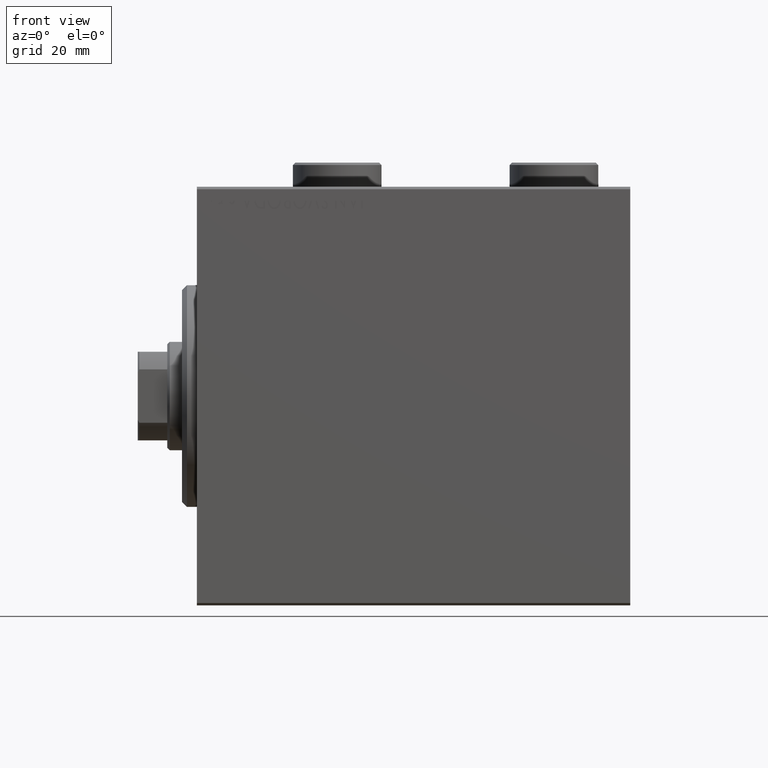
[diagram: clean part render]
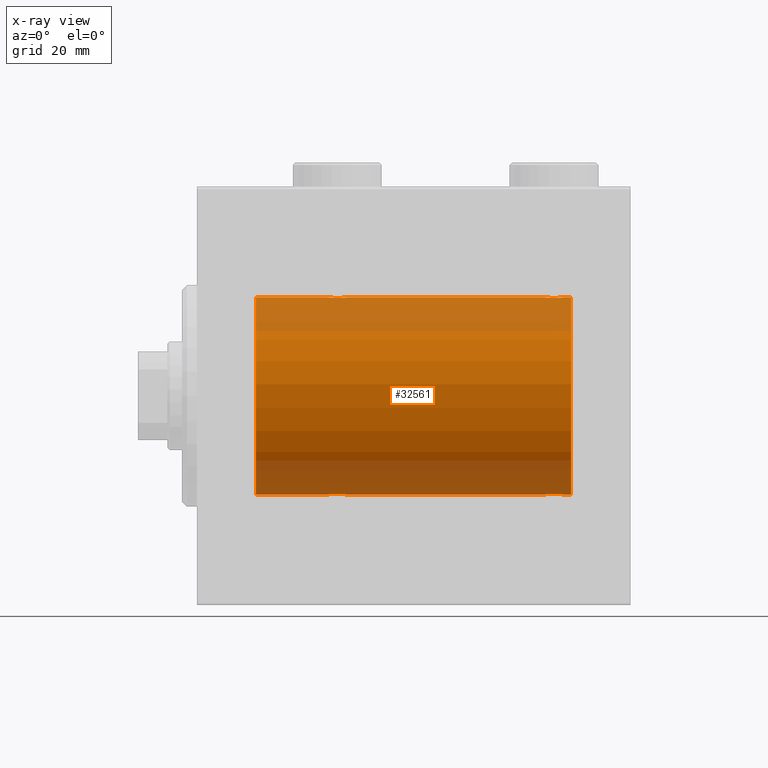
[diagram: x-ray — body ghosted, one internal face saturated and labeled with its STEP entity id]
A machine part, front view, then the same camera in x-ray: the body is ghosted and one INTERNAL B-rep face — a face not visible from any outside direction — is saturated and labeled: STEP entity #32561.
In plain terms, the highlighted cylindrical surface (partial cylindrical patch) has radius 20 mm, axis along (-1, -0, -0).
Its self-contained STEP definition (entity closure, byte-faithful):
#18 = CYLINDRICAL_SURFACE ( 'NONE', #40103, 20.00000000000000000 ) ;
#47 = EDGE_CURVE ( 'NONE', #7856, #31457, #36540, .T. ) ;
#155 = CARTESIAN_POINT ( 'NONE',  ( 74.24825913460018967, -1.005710574260840984, -19.97614991974274901 ) ) ;
#382 = CARTESIAN_POINT ( 'NONE',  ( 73.01923512135279282, -1.935816449315126642, -19.90611141657402072 ) ) ;
#414 = CARTESIAN_POINT ( 'NONE',  ( 28.76358144091416236, -1.986835489085814199, -19.90108393514801222 ) ) ;
#602 = CARTESIAN_POINT ( 'NONE',  ( 73.50306556339603503, -1.735203193119893461, -19.92471783160911514 ) ) ;
#634 = CARTESIAN_POINT ( 'NONE',  ( 70.90058475115969827, -1.228758402364240609, 19.96307487248084911 ) ) ;
#833 = DIRECTION ( 'NONE',  ( -1.000000000000000000, -0.000000000000000000, -0.000000000000000000 ) ) ;
#841 = CARTESIAN_POINT ( 'NONE',  ( 71.17903093152709459, -1.507328959728491791, -19.94333197382385592 ) ) ;
#874 = CARTESIAN_POINT ( 'NONE',  ( 70.50000000000000000, -1.553188236289650144E-23, 20.00000000000000000 ) ) ;
#1108 = CARTESIAN_POINT ( 'NONE',  ( 73.14348528733046351, -1.898187925611334315, 19.90978194174746818 ) ) ;
#1552 = CARTESIAN_POINT ( 'NONE',  ( 70.55244937117491588, -0.5243189001515019543, 19.99457699142849876 ) ) ;
#2266 = CARTESIAN_POINT ( 'NONE',  ( 30.49999999999999289, -0.2644051013330969702, 20.00000000000000711 ) ) ;
#2488 = CARTESIAN_POINT ( 'NONE',  ( 27.49693443660397918, -1.735203193119897902, 19.92471783160911158 ) ) ;
#3011 = VECTOR ( 'NONE', #833, 1000.000000000000000 ) ;
#3139 = VECTOR ( 'NONE', #11126, 1000.000000000000000 ) ;
#3190 = CARTESIAN_POINT ( 'NONE',  ( 27.98351467081095123, -1.936551476643005198, -19.90603968831098314 ) ) ;
#3334 = LINE ( 'NONE', #6107, #34472 ) ;
#3386 = CARTESIAN_POINT ( 'NONE',  ( 70.55320515808200810, -0.5270924491156711023, -19.99450181871975474 ) ) ;
#3413 = CARTESIAN_POINT ( 'NONE',  ( 30.09941524884030173, -1.228758402364235502, -19.96307487248084911 ) ) ;
#3608 = CARTESIAN_POINT ( 'NONE',  ( 74.50000000000001421, 2.449293582762867932E-15, -20.00000000000000000 ) ) ;
#3623 = EDGE_CURVE ( 'NONE', #6312, #17763, #35611, .T. ) ;
#4320 = CARTESIAN_POINT ( 'NONE',  ( 73.38579076670728796, -1.797933656607910713, 19.91908554465557657 ) ) ;
#4708 = ORIENTED_EDGE ( 'NONE', *, *, #21113, .T. ) ;
#4775 = CARTESIAN_POINT ( 'NONE',  ( 72.36634803857555198, -1.999898234284061216, 19.89975896996866922 ) ) ;
#4781 = CARTESIAN_POINT ( 'NONE',  ( 70.50000000000000000, -1.553188236289650144E-23, 20.00000000000000000 ) ) ;
#5167 = EDGE_LOOP ( 'NONE', ( #13993, #20330, #14172, #23089, #11735, #26448, #4708, #23961, #15843, #12724, #17313, #19059 ) ) ;
#5257 = CARTESIAN_POINT ( 'NONE',  ( 30.24686976303072328, -1.008108445278687926, 19.97602680192586888 ) ) ;
#5488 = CARTESIAN_POINT ( 'NONE',  ( 28.23641855908585541, -1.986835489085814643, 19.90108393514801222 ) ) ;
#5938 = CARTESIAN_POINT ( 'NONE',  ( 26.50000000000000711, -0.2610801504281929919, 20.00000000000000000 ) ) ;
#6107 = CARTESIAN_POINT ( 'NONE',  ( 76.00000000000000000, 0.000000000000000000, 20.00000000000000000 ) ) ;
#6312 = VERTEX_POINT ( 'NONE', #37732 ) ;
#6409 = CARTESIAN_POINT ( 'NONE',  ( 29.01923512135276795, -1.935816449315124643, -19.90611141657401717 ) ) ;
#6709 = CARTESIAN_POINT ( 'NONE',  ( 11.99999999999999645, 0.000000000000000000, 20.00000000000000000 ) ) ;
#7091 = CARTESIAN_POINT ( 'NONE',  ( 26.55320515808203297, -0.5270924491156698810, -19.99450181871976184 ) ) ;
#7318 = CARTESIAN_POINT ( 'NONE',  ( 28.63365196142448355, -1.999898234284062992, -19.89975896996866211 ) ) ;
#7704 = CIRCLE ( 'NONE', #31242, 20.00000000000000000 ) ;
#7749 = CARTESIAN_POINT ( 'NONE',  ( 71.98351467081099031, -1.936551476643008529, -19.90603968831099024 ) ) ;
#7856 = VERTEX_POINT ( 'NONE', #44254 ) ;
#8001 = CARTESIAN_POINT ( 'NONE',  ( 73.82096906847290541, -1.507328959728488238, 19.94333197382385947 ) ) ;
#8095 = B_SPLINE_CURVE_WITH_KNOTS ( 'NONE', 3,
 ( #33622, #5938, #33396, #36849, #34066, #37081, #12638, #2488, #29707, #30605, #43764, #5488, #44652, #13080, #19570, #8491, #27153, #22571, #19109, #16106, #12187, #26256, #5257, #19796, #2266, #33850 ),
 .UNSPECIFIED., .F., .F.,
 ( 4, 2, 2, 2, 2, 2, 2, 2, 2, 2, 2, 2, 4 ),
 ( 0.006256819553329811059, 0.007038738568778783733, 0.007820657584227756406, 0.008211617091952238406, 0.008602576599676722141, 0.008993536107401204141, 0.009384495615125686141, 0.009775455122850168141, 0.01016641463057465014, 0.01055737413829913214, 0.01094833364602361414, 0.01173025266147257814, 0.01251217167692154214 ),
 .UNSPECIFIED. ) ;
#8227 = CARTESIAN_POINT ( 'NONE',  ( 74.50000000000001421, 9.984436361108698300E-16, 20.00000000000000000 ) ) ;
#8459 = CARTESIAN_POINT ( 'NONE',  ( 70.75174086539982454, -1.005710574260841872, 19.97614991974274190 ) ) ;
#8491 = CARTESIAN_POINT ( 'NONE',  ( 29.01648532918905943, -1.936551476643006753, 19.90603968831098669 ) ) ;
#8818 = CARTESIAN_POINT ( 'NONE',  ( 74.50000000000001421, 2.449293582762867932E-15, -20.00000000000000000 ) ) ;
#9363 = EDGE_CURVE ( 'NONE', #12525, #7856, #12862, .T. ) ;
#9412 = DIRECTION ( 'NONE',  ( -1.000000000000000000, -0.000000000000000000, -0.000000000000000000 ) ) ;
#9879 = CARTESIAN_POINT ( 'NONE',  ( 26.75313023696928738, -1.008108445278687704, -19.97602680192586533 ) ) ;
#10332 = CARTESIAN_POINT ( 'NONE',  ( 30.24825913460018612, -1.005710574260838985, -19.97614991974274190 ) ) ;
#10562 = CARTESIAN_POINT ( 'NONE',  ( 29.14630673924643744, -1.897222639860594029, -19.90987429971496780 ) ) ;
#10786 = CARTESIAN_POINT ( 'NONE',  ( 27.85651471266959334, -1.898187925611338533, -19.90978194174746818 ) ) ;
#10962 = CARTESIAN_POINT ( 'NONE',  ( 30.50000000000000000, -4.014971335008767791E-15, 20.00000000000000000 ) ) ;
#11126 = DIRECTION ( 'NONE',  ( -1.000000000000000000, -0.000000000000000000, -0.000000000000000000 ) ) ;
#11245 = CARTESIAN_POINT ( 'NONE',  ( 72.23641855908587672, -1.986835489085812867, 19.90108393514801577 ) ) ;
#11504 = VERTEX_POINT ( 'NONE', #23957 ) ;
#11735 = ORIENTED_EDGE ( 'NONE', *, *, #44573, .T. ) ;
#12046 = CARTESIAN_POINT ( 'NONE',  ( 11.99999999999999645, 0.000000000000000000, 0.000000000000000000 ) ) ;
#12187 = CARTESIAN_POINT ( 'NONE',  ( 29.82096906847289119, -1.507328959728493567, 19.94333197382385592 ) ) ;
#12428 = CARTESIAN_POINT ( 'NONE',  ( 76.00000000000000000, 2.449293598294706513E-15, -20.00000000000000000 ) ) ;
#12525 = VERTEX_POINT ( 'NONE', #8818 ) ;
#12638 = CARTESIAN_POINT ( 'NONE',  ( 27.27971054205535850, -1.589957321664211998, 19.93683391378736047 ) ) ;
#12724 = ORIENTED_EDGE ( 'NONE', *, *, #39598, .F. ) ;
#12755 = VERTEX_POINT ( 'NONE', #4781 ) ;
#12862 = B_SPLINE_CURVE_WITH_KNOTS ( 'NONE', 3,
 ( #3608, #18137, #18370, #155, #45559, #24381, #32180, #602, #14663, #35419, #382, #25290, #20929, #14435, #42333, #7749, #14211, #24829, #21828, #32413, #841, #14897, #34973, #3386, #31503, #38656 ),
 .UNSPECIFIED., .F., .F.,
 ( 4, 2, 2, 2, 2, 2, 2, 2, 2, 2, 2, 2, 4 ),
 ( 0.006256819553329831876, 0.007038738568778780264, 0.007820657584227728651, 0.008211617091952217590, 0.008602576599676706529, 0.008993536107401195467, 0.009384495615125684406, 0.009775455122850173345, 0.01016641463057466055, 0.01055737413829914775, 0.01094833364602363843, 0.01173025266147261284, 0.01251217167692158898 ),
 .UNSPECIFIED. ) ;
#13080 = CARTESIAN_POINT ( 'NONE',  ( 28.63058871710834552, -2.000100592782553921, 19.89973863218035888 ) ) ;
#13567 = CARTESIAN_POINT ( 'NONE',  ( 26.90225308445269903, -1.230936344679278260, -19.96293863536309132 ) ) ;
#13722 = VERTEX_POINT ( 'NONE', #40138 ) ;
#13786 = CARTESIAN_POINT ( 'NONE',  ( 29.38829437207091999, -1.796691196322316664, -19.91919800395357143 ) ) ;
#13993 = ORIENTED_EDGE ( 'NONE', *, *, #32089, .F. ) ;
#14172 = ORIENTED_EDGE ( 'NONE', *, *, #9363, .T. ) ;
#14203 = CARTESIAN_POINT ( 'NONE',  ( 76.00000000000000000, 0.000000000000000000, 20.00000000000000000 ) ) ;
#14211 = CARTESIAN_POINT ( 'NONE',  ( 71.85651471266959334, -1.898187925611341198, -19.90978194174746818 ) ) ;
#14435 = CARTESIAN_POINT ( 'NONE',  ( 72.36941128289164737, -2.000100592782554809, -19.89973863218035888 ) ) ;
#14663 = CARTESIAN_POINT ( 'NONE',  ( 73.38829437207093065, -1.796691196322316886, -19.91919800395357143 ) ) ;
#14673 = EDGE_CURVE ( 'NONE', #22361, #29223, #8095, .T. ) ;
#14698 = CARTESIAN_POINT ( 'NONE',  ( 71.61170562792908356, -1.796691196322320216, 19.91919800395356788 ) ) ;
#14897 = CARTESIAN_POINT ( 'NONE',  ( 70.90225308445273811, -1.230936344679278038, -19.96293863536309487 ) ) ;
#15843 = ORIENTED_EDGE ( 'NONE', *, *, #14673, .T. ) ;
#15917 = CARTESIAN_POINT ( 'NONE',  ( 26.50000000000000355, -1.552596590610734385E-23, 20.00000000000000000 ) ) ;
#16106 = CARTESIAN_POINT ( 'NONE',  ( 29.71805419472152110, -1.591668229360196252, 19.93669678979812332 ) ) ;
#16657 = EDGE_CURVE ( 'NONE', #13722, #12525, #40779, .T. ) ;
#16948 = DIRECTION ( 'NONE',  ( -1.000000000000000000, -0.000000000000000000, -0.000000000000000000 ) ) ;
#17313 = ORIENTED_EDGE ( 'NONE', *, *, #44726, .T. ) ;
#17485 = CARTESIAN_POINT ( 'NONE',  ( 27.17903093152710525, -1.507328959728492457, -19.94333197382385592 ) ) ;
#17711 = CARTESIAN_POINT ( 'NONE',  ( 27.28194580527848601, -1.591668229360197140, -19.93669678979812332 ) ) ;
#17763 = VERTEX_POINT ( 'NONE', #33549 ) ;
#17987 = VECTOR ( 'NONE', #39061, 1000.000000000000000 ) ;
#18137 = CARTESIAN_POINT ( 'NONE',  ( 74.50000000000002842, -0.2610801504281906049, -19.99999999999999645 ) ) ;
#18169 = CARTESIAN_POINT ( 'NONE',  ( 70.50000000000004263, -0.2610801504281927699, 20.00000000000000355 ) ) ;
#18175 = CARTESIAN_POINT ( 'NONE',  ( 30.50000000000000000, 2.449293582768389958E-15, -20.00000000000000000 ) ) ;
#18370 = CARTESIAN_POINT ( 'NONE',  ( 74.44755062882509833, -0.5243189001515005110, -19.99457699142850231 ) ) ;
#18400 = CARTESIAN_POINT ( 'NONE',  ( 73.50067219139243946, -1.736582545981368852, 19.92459705242980661 ) ) ;
#18853 = CARTESIAN_POINT ( 'NONE',  ( 72.76077256031568652, -1.987205673487806967, 19.90104673894210663 ) ) ;
#19042 = EDGE_CURVE ( 'NONE', #11504, #26343, #32173, .T. ) ;
#19059 = ORIENTED_EDGE ( 'NONE', *, *, #19042, .F. ) ;
#19109 = CARTESIAN_POINT ( 'NONE',  ( 29.50067219139244656, -1.736582545981375292, 19.92459705242981371 ) ) ;
#19527 = B_SPLINE_CURVE_WITH_KNOTS ( 'NONE', 3,
 ( #31534, #45366, #20733, #10332, #3413, #31760, #31314, #24639, #13786, #10562, #6409, #414, #7318, #28084, #38459, #3190, #10786, #20494, #34545, #17711, #17485, #13567, #9879, #7091, #38684, #42139 ),
 .UNSPECIFIED., .F., .F.,
 ( 4, 2, 2, 2, 2, 2, 2, 2, 2, 2, 2, 2, 4 ),
 ( 0.006256819553329842284, 0.007038738568778818427, 0.007820657584227792836, 0.008211617091952278305, 0.008602576599676762040, 0.008993536107401245774, 0.009384495615125729509, 0.009775455122850213244, 0.01016641463057469871, 0.01055737413829918071, 0.01094833364602366618, 0.01173025266147263365, 0.01251217167692159939 ),
 .UNSPECIFIED. ) ;
#19570 = CARTESIAN_POINT ( 'NONE',  ( 28.76077256031567586, -1.987205673487810298, 19.90104673894210663 ) ) ;
#19796 = CARTESIAN_POINT ( 'NONE',  ( 30.44679484191797414, -0.5270924491156706582, 19.99450181871975829 ) ) ;
#20328 = DIRECTION ( 'NONE',  ( 0.000000000000000000, 0.000000000000000000, 1.000000000000000000 ) ) ;
#20330 = ORIENTED_EDGE ( 'NONE', *, *, #16657, .T. ) ;
#20494 = CARTESIAN_POINT ( 'NONE',  ( 27.61420923329272981, -1.797933656607917596, -19.91908554465558367 ) ) ;
#20559 = CARTESIAN_POINT ( 'NONE',  ( 76.00000000000000000, 0.000000000000000000, 0.000000000000000000 ) ) ;
#20733 = CARTESIAN_POINT ( 'NONE',  ( 30.44755062882508412, -0.5243189001514996228, -19.99457699142849876 ) ) ;
#20772 = AXIS2_PLACEMENT_3D ( 'NONE', #12046, #40791, #32331 ) ;
#20929 = CARTESIAN_POINT ( 'NONE',  ( 72.63365196142451907, -1.999898234284062104, -19.89975896996866211 ) ) ;
#21113 = EDGE_CURVE ( 'NONE', #17763, #35173, #24451, .T. ) ;
#21518 = LINE ( 'NONE', #35565, #3139 ) ;
#21828 = CARTESIAN_POINT ( 'NONE',  ( 71.49932780860757475, -1.736582545981372405, -19.92459705242980661 ) ) ;
#21860 = CARTESIAN_POINT ( 'NONE',  ( 71.17693331080536723, -1.505486175075777311, 19.94347168299868045 ) ) ;
#22091 = CARTESIAN_POINT ( 'NONE',  ( 74.09774691554730452, -1.230936344679272043, 19.96293863536309487 ) ) ;
#22361 = VERTEX_POINT ( 'NONE', #15917 ) ;
#22571 = CARTESIAN_POINT ( 'NONE',  ( 29.38579076670729151, -1.797933656607919817, 19.91908554465558367 ) ) ;
#23089 = ORIENTED_EDGE ( 'NONE', *, *, #47, .T. ) ;
#23791 = VECTOR ( 'NONE', #41300, 1000.000000000000000 ) ;
#23947 = B_SPLINE_CURVE_WITH_KNOTS ( 'NONE', 3,
 ( #874, #18169, #1552, #8459, #634, #21860, #28535, #25324, #14698, #42821, #43501, #11245, #4775, #35907, #18853, #43049, #1108, #4320, #18400, #39596, #8001, #22091, #32676, #29218, #39821, #8227 ),
 .UNSPECIFIED., .F., .F.,
 ( 4, 2, 2, 2, 2, 2, 2, 2, 2, 2, 2, 2, 4 ),
 ( 0.006256819553329836213, 0.007038738568778784600, 0.007820657584227733855, 0.008211617091952222794, 0.008602576599676711733, 0.008993536107401198937, 0.009384495615125687876, 0.009775455122850176815, 0.01016641463057466402, 0.01055737413829915296, 0.01094833364602364190, 0.01173025266147261630, 0.01251217167692159418 ),
 .UNSPECIFIED. ) ;
#23957 = CARTESIAN_POINT ( 'NONE',  ( 76.00000000000000000, 0.000000000000000000, 20.00000000000000000 ) ) ;
#23961 = ORIENTED_EDGE ( 'NONE', *, *, #28188, .F. ) ;
#24021 = DIRECTION ( 'NONE',  ( -1.000000000000000000, -0.000000000000000000, -0.000000000000000000 ) ) ;
#24381 = CARTESIAN_POINT ( 'NONE',  ( 73.82306668919467540, -1.505486175075773758, -19.94347168299867690 ) ) ;
#24451 = CIRCLE ( 'NONE', #20772, 20.00000000000000000 ) ;
#24639 = CARTESIAN_POINT ( 'NONE',  ( 29.50306556339602437, -1.735203193119894349, -19.92471783160910803 ) ) ;
#24829 = CARTESIAN_POINT ( 'NONE',  ( 71.61420923329269783, -1.797933656607920039, -19.91908554465557657 ) ) ;
#24998 = DIRECTION ( 'NONE',  ( -1.000000000000000000, 0.000000000000000000, 0.000000000000000000 ) ) ;
#25290 = CARTESIAN_POINT ( 'NONE',  ( 72.76358144091415170, -1.986835489085815309, -19.90108393514801577 ) ) ;
#25324 = CARTESIAN_POINT ( 'NONE',  ( 71.49693443660397918, -1.735203193119890352, 19.92471783160910803 ) ) ;
#26256 = CARTESIAN_POINT ( 'NONE',  ( 30.09774691554730097, -1.230936344679278482, 19.96293863536309132 ) ) ;
#26343 = VERTEX_POINT ( 'NONE', #29296 ) ;
#26448 = ORIENTED_EDGE ( 'NONE', *, *, #3623, .T. ) ;
#27153 = CARTESIAN_POINT ( 'NONE',  ( 29.14348528733041377, -1.898187925611340088, 19.90978194174746818 ) ) ;
#28084 = CARTESIAN_POINT ( 'NONE',  ( 28.36941128289166159, -2.000100592782553921, -19.89973863218036598 ) ) ;
#28188 = EDGE_CURVE ( 'NONE', #22361, #35173, #21518, .T. ) ;
#28535 = CARTESIAN_POINT ( 'NONE',  ( 71.27971054205536916, -1.589957321664204448, 19.93683391378736403 ) ) ;
#29218 = CARTESIAN_POINT ( 'NONE',  ( 74.44679484191796348, -0.5270924491156651071, 19.99450181871975829 ) ) ;
#29223 = VERTEX_POINT ( 'NONE', #10962 ) ;
#29296 = CARTESIAN_POINT ( 'NONE',  ( 74.50000000000001421, 9.984436361108698300E-16, 20.00000000000000000 ) ) ;
#29624 = CARTESIAN_POINT ( 'NONE',  ( 76.00000000000000000, 2.449293598294706513E-15, -20.00000000000000000 ) ) ;
#29707 = CARTESIAN_POINT ( 'NONE',  ( 27.61170562792909422, -1.796691196322319994, 19.91919800395357143 ) ) ;
#30605 = CARTESIAN_POINT ( 'NONE',  ( 27.85369326075355545, -1.897222639860597360, 19.90987429971497491 ) ) ;
#31242 = AXIS2_PLACEMENT_3D ( 'NONE', #42045, #24998, #35354 ) ;
#31314 = CARTESIAN_POINT ( 'NONE',  ( 29.72028945794465571, -1.589957321664208223, -19.93683391378736047 ) ) ;
#31457 = VERTEX_POINT ( 'NONE', #18175 ) ;
#31503 = CARTESIAN_POINT ( 'NONE',  ( 70.50000000000000000, -0.2644051013331069067, -19.99999999999999289 ) ) ;
#31534 = CARTESIAN_POINT ( 'NONE',  ( 30.50000000000000000, 2.449293582768389958E-15, -20.00000000000000000 ) ) ;
#31760 = CARTESIAN_POINT ( 'NONE',  ( 29.82306668919470383, -1.505486175075772870, -19.94347168299867334 ) ) ;
#32089 = EDGE_CURVE ( 'NONE', #13722, #11504, #7704, .T. ) ;
#32173 = LINE ( 'NONE', #14203, #3011 ) ;
#32180 = CARTESIAN_POINT ( 'NONE',  ( 73.72028945794465926, -1.589957321664207113, -19.93683391378736758 ) ) ;
#32331 = DIRECTION ( 'NONE',  ( 0.000000000000000000, 0.000000000000000000, 1.000000000000000000 ) ) ;
#32413 = CARTESIAN_POINT ( 'NONE',  ( 71.28194580527849666, -1.591668229360193143, -19.93669678979812332 ) ) ;
#32561 = ADVANCED_FACE ( 'NONE', ( #38059 ), #18, .F. ) ;
#32676 = CARTESIAN_POINT ( 'NONE',  ( 74.24686976303074459, -1.008108445278681931, 19.97602680192586178 ) ) ;
#33396 = CARTESIAN_POINT ( 'NONE',  ( 26.55244937117492299, -0.5243189001515023984, 19.99457699142850586 ) ) ;
#33549 = CARTESIAN_POINT ( 'NONE',  ( 11.99999999999999645, 2.449293598294706513E-15, -20.00000000000000000 ) ) ;
#33622 = CARTESIAN_POINT ( 'NONE',  ( 26.50000000000000355, -1.552596590610734385E-23, 20.00000000000000000 ) ) ;
#33850 = CARTESIAN_POINT ( 'NONE',  ( 30.50000000000000000, -4.014971335008767791E-15, 20.00000000000000000 ) ) ;
#34066 = CARTESIAN_POINT ( 'NONE',  ( 26.90058475115969827, -1.228758402364236391, 19.96307487248084556 ) ) ;
#34472 = VECTOR ( 'NONE', #16948, 1000.000000000000000 ) ;
#34545 = CARTESIAN_POINT ( 'NONE',  ( 27.49932780860757475, -1.736582545981376180, -19.92459705242981371 ) ) ;
#34973 = CARTESIAN_POINT ( 'NONE',  ( 70.75313023696928383, -1.008108445278686816, -19.97602680192586178 ) ) ;
#35173 = VERTEX_POINT ( 'NONE', #6709 ) ;
#35354 = DIRECTION ( 'NONE',  ( 0.000000000000000000, 0.000000000000000000, 1.000000000000000000 ) ) ;
#35419 = CARTESIAN_POINT ( 'NONE',  ( 73.14630673924648363, -1.897222639860595139, -19.90987429971497136 ) ) ;
#35565 = CARTESIAN_POINT ( 'NONE',  ( 76.00000000000000000, 0.000000000000000000, 20.00000000000000000 ) ) ;
#35611 = LINE ( 'NONE', #38831, #17987 ) ;
#35907 = CARTESIAN_POINT ( 'NONE',  ( 72.63058871710832420, -2.000100592782551256, 19.89973863218035888 ) ) ;
#36540 = LINE ( 'NONE', #29624, #23791 ) ;
#36849 = CARTESIAN_POINT ( 'NONE',  ( 26.75174086539981033, -1.005710574260841206, 19.97614991974274190 ) ) ;
#37081 = CARTESIAN_POINT ( 'NONE',  ( 27.17693331080528907, -1.505486175075773758, 19.94347168299867690 ) ) ;
#37732 = CARTESIAN_POINT ( 'NONE',  ( 26.50000000000000355, -3.809869420541414000E-15, -20.00000000000000000 ) ) ;
#38059 = FACE_OUTER_BOUND ( 'NONE', #5167, .T. ) ;
#38459 = CARTESIAN_POINT ( 'NONE',  ( 28.23922743968432059, -1.987205673487808966, -19.90104673894211018 ) ) ;
#38656 = CARTESIAN_POINT ( 'NONE',  ( 70.50000000000000000, -5.133775462521235346E-15, -20.00000000000000000 ) ) ;
#38684 = CARTESIAN_POINT ( 'NONE',  ( 26.50000000000001066, -0.2644051013331030209, -20.00000000000000355 ) ) ;
#38831 = CARTESIAN_POINT ( 'NONE',  ( 76.00000000000000000, 2.449293598294706513E-15, -20.00000000000000000 ) ) ;
#39046 = VECTOR ( 'NONE', #9412, 1000.000000000000000 ) ;
#39061 = DIRECTION ( 'NONE',  ( -1.000000000000000000, -0.000000000000000000, -0.000000000000000000 ) ) ;
#39596 = CARTESIAN_POINT ( 'NONE',  ( 73.71805419472154597, -1.591668229360190034, 19.93669678979813042 ) ) ;
#39598 = EDGE_CURVE ( 'NONE', #12755, #29223, #3334, .T. ) ;
#39821 = CARTESIAN_POINT ( 'NONE',  ( 74.50000000000000000, -0.2644051013330985245, 19.99999999999999645 ) ) ;
#40103 = AXIS2_PLACEMENT_3D ( 'NONE', #20559, #24021, #20328 ) ;
#40138 = CARTESIAN_POINT ( 'NONE',  ( 76.00000000000000000, 2.449293598294706513E-15, -20.00000000000000000 ) ) ;
#40779 = LINE ( 'NONE', #12428, #39046 ) ;
#40791 = DIRECTION ( 'NONE',  ( -1.000000000000000000, 0.000000000000000000, 0.000000000000000000 ) ) ;
#41300 = DIRECTION ( 'NONE',  ( -1.000000000000000000, -0.000000000000000000, -0.000000000000000000 ) ) ;
#42045 = CARTESIAN_POINT ( 'NONE',  ( 76.00000000000000000, 0.000000000000000000, 0.000000000000000000 ) ) ;
#42139 = CARTESIAN_POINT ( 'NONE',  ( 26.50000000000000355, -3.809869420541414000E-15, -20.00000000000000000 ) ) ;
#42333 = CARTESIAN_POINT ( 'NONE',  ( 72.23922743968432769, -1.987205673487811630, -19.90104673894211018 ) ) ;
#42821 = CARTESIAN_POINT ( 'NONE',  ( 71.85369326075358742, -1.897222639860597360, 19.90987429971497491 ) ) ;
#43049 = CARTESIAN_POINT ( 'NONE',  ( 73.01648532918906653, -1.936551476643001202, 19.90603968831098669 ) ) ;
#43501 = CARTESIAN_POINT ( 'NONE',  ( 71.98076487864723561, -1.935816449315123977, 19.90611141657402072 ) ) ;
#43764 = CARTESIAN_POINT ( 'NONE',  ( 27.98076487864722495, -1.935816449315125087, 19.90611141657401362 ) ) ;
#44254 = CARTESIAN_POINT ( 'NONE',  ( 70.50000000000000000, -5.133775462521235346E-15, -20.00000000000000000 ) ) ;
#44573 = EDGE_CURVE ( 'NONE', #31457, #6312, #19527, .T. ) ;
#44652 = CARTESIAN_POINT ( 'NONE',  ( 28.36634803857552001, -1.999898234284063436, 19.89975896996866211 ) ) ;
#44726 = EDGE_CURVE ( 'NONE', #12755, #26343, #23947, .T. ) ;
#45366 = CARTESIAN_POINT ( 'NONE',  ( 30.49999999999999645, -0.2610801504281900498, -19.99999999999999645 ) ) ;
#45559 = CARTESIAN_POINT ( 'NONE',  ( 74.09941524884031594, -1.228758402364235947, -19.96307487248084556 ) ) ;